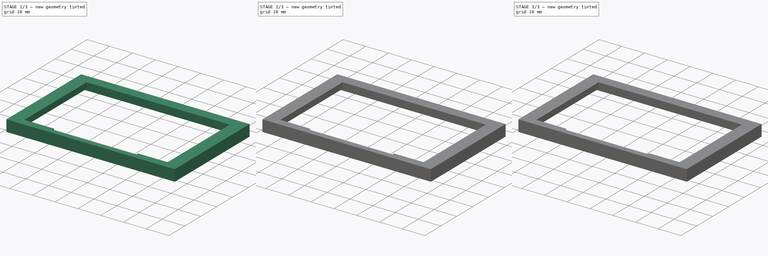
[diagram: build sequence overview — one tinted view per stage of 3, left to right]
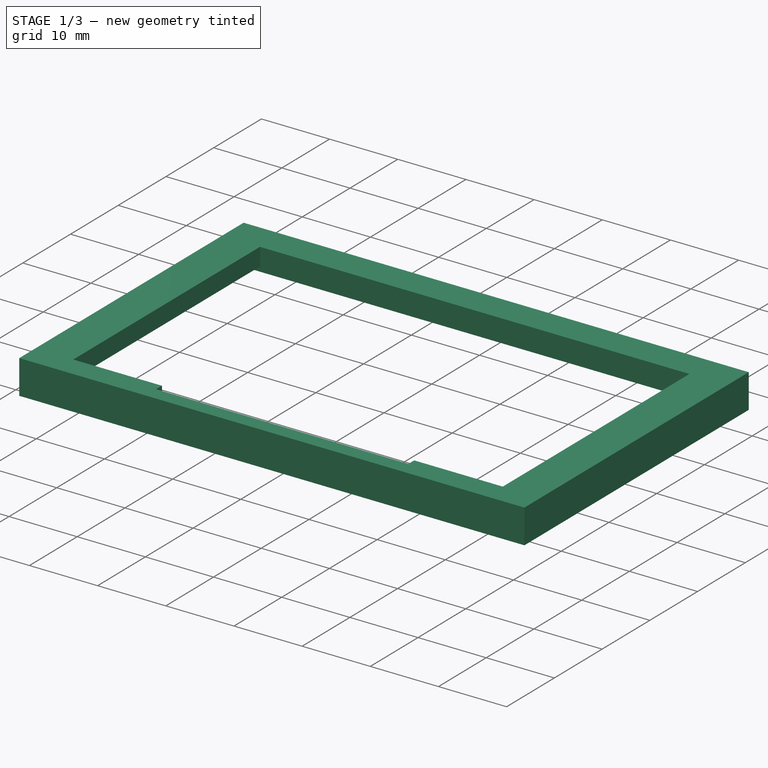
[diagram: stage 1 of 3 — iso view after this stage's code; geometry added in this stage tinted green]
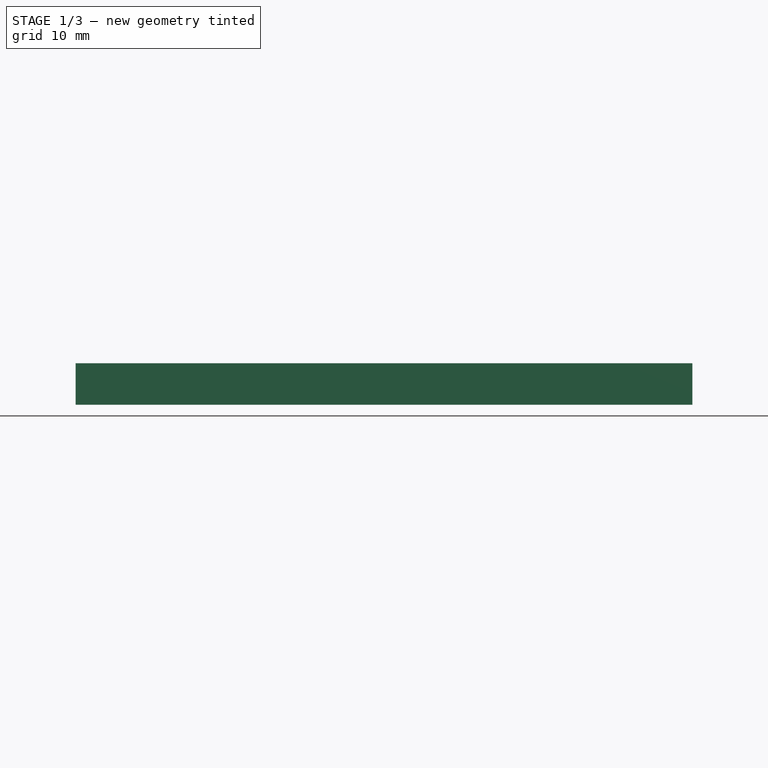
[diagram: stage 1 of 3 — front view after this stage's code; geometry added in this stage tinted green]
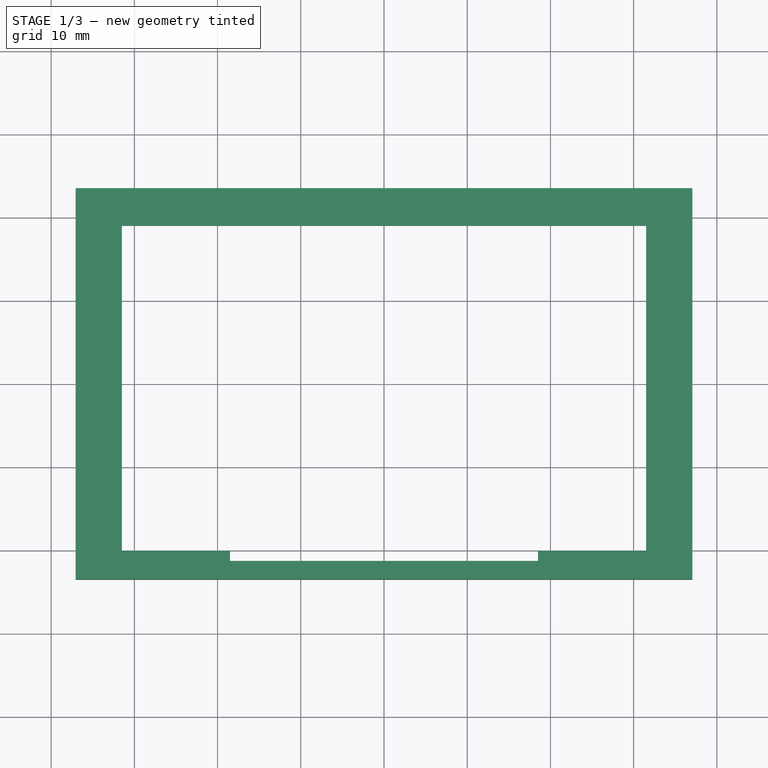
[diagram: stage 1 of 3 — top view after this stage's code; geometry added in this stage tinted green]
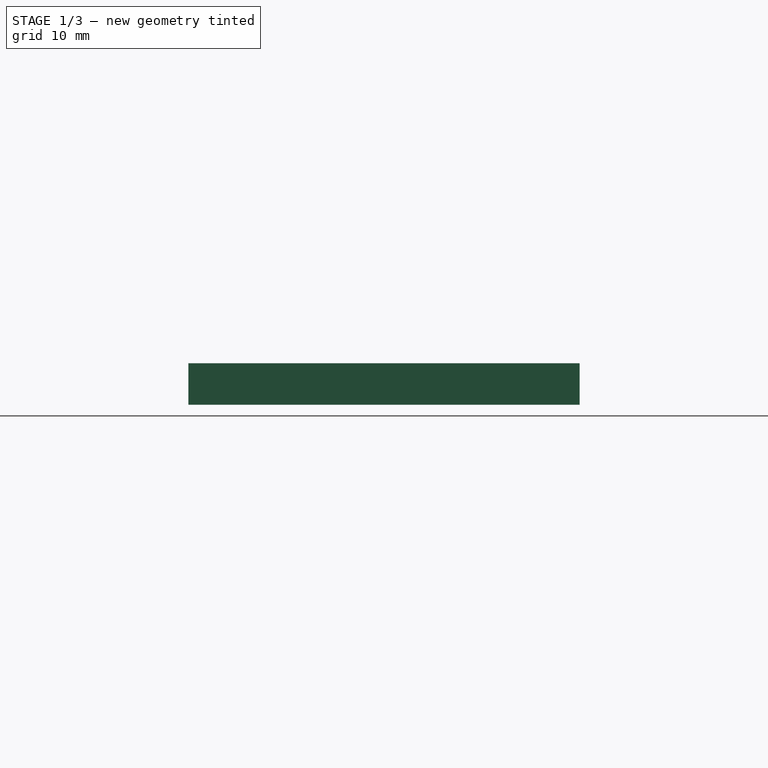
[diagram: stage 1 of 3 — right view after this stage's code; geometry added in this stage tinted green]
FCSTD DOCUMENT  (FreeCAD 0.18.4R)
Label: up_case
License: All rights reserved
LicenseURL: http://en.wikipedia.org/wiki/All_rights_reserved
objects: Sketcher::SketchObject×4, PartDesign::Pocket×3, PartDesign::Chamfer×2, PartDesign::Fillet×2, PartDesign::Pad×1, PartDesign::Body×1
note: 17 computed .brp shape members not serialized (recipe doc carries the construction recipe); baked Part::Feature solids carry a one-line shape summary decoded from their .brp

FEATURE [Sketcher::SketchObject] Sketch
  MapMode = 5
  Support = -> [XY_Plane]
  sketch-geometry (4):
    g0: LineSegment StartX=-37.05 StartY=23.5 StartZ=0 EndX=37.05 EndY=23.5 EndZ=0
    g1: LineSegment StartX=37.05 StartY=23.5 StartZ=0 EndX=37.05 EndY=-23.5 EndZ=0
    g2: LineSegment StartX=37.05 StartY=-23.5 StartZ=0 EndX=-37.05 EndY=-23.5 EndZ=0
    g3: LineSegment StartX=-37.05 StartY=-23.5 StartZ=0 EndX=-37.05 EndY=23.5 EndZ=0
  constraints (10):
    c: Coincident(g0,g1)
    c: Coincident(g1,g2)
    c: Coincident(g2,g3)
    c: Coincident(g3,g0)
    c: Horizontal(g2)
    c: Vertical(g1)
    c: Symmetric(g0,g0,g-2)
    c: Symmetric(g0,g2,g-1)
    c: DistanceX(g0,g0) = 74.1
    c: DistanceY(g3,g3) = 47
FEATURE [PartDesign::Pad] Pad
  Length = 5
  Length2 = 100
  Profile = -> Sketch
  Type = 0
FEATURE [Sketcher::SketchObject] Sketch001
  ExternalGeometry = -> [Pad]
  MapMode = 5
  Placement = pos=(0,0,0) rot=(1,0,0;3.14159rad)
  Support = -> [Pad]
  sketch-geometry (4):
    g0: LineSegment StartX=-35.85 StartY=22 StartZ=0 EndX=35.85 EndY=22 EndZ=0
    g1: LineSegment StartX=35.85 StartY=22 StartZ=0 EndX=35.85 EndY=-22 EndZ=0
    g2: LineSegment StartX=35.85 StartY=-22 StartZ=0 EndX=-35.85 EndY=-22 EndZ=0
    g3: LineSegment StartX=-35.85 StartY=-22 StartZ=0 EndX=-35.85 EndY=22 EndZ=0
  constraints (12):
    c: Coincident(g0,g1)
    c: Coincident(g1,g2)
    c: Coincident(g2,g3)
    c: Coincident(g3,g0)
    c: Horizontal(g2)
    c: Vertical(g1)
    c: Distance(g-4) = 74.1
    c: Distance(g-3) = 47
    c: Symmetric(g0,g0,g-2)
    c: Symmetric(g0,g2,g-1)
    c: DistanceX(g0,g0) = 71.7
    c: DistanceY(g1,g1) = 44
FEATURE [PartDesign::Pocket] Pocket
  BaseFeature = -> Pad
  Length = 2.4
  Length2 = 100
  Profile = -> Sketch001
  Type = 0
FEATURE [Sketcher::SketchObject] Sketch002
  ExternalGeometry = -> [Pocket]
  MapMode = 5
  Placement = pos=(0,0,5) rot=(0,0,1;0rad)
  Support = -> [Pocket]
  sketch-geometry (8):
    g0: LineSegment StartX=-31.5 StartY=19 StartZ=0 EndX=31.5 EndY=19 EndZ=0
    g1: LineSegment StartX=31.5 StartY=19 StartZ=0 EndX=31.5 EndY=-20.1 EndZ=0
    g2: LineSegment StartX=-31.5 StartY=-20.1 StartZ=0 EndX=-31.5 EndY=19 EndZ=0
    g3: LineSegment StartX=18.5 StartY=-20.1 StartZ=0 EndX=18.5 EndY=-21.3 EndZ=0
    g4: LineSegment StartX=18.5 StartY=-21.3 StartZ=0 EndX=-18.5 EndY=-21.3 EndZ=0
    g5: LineSegment StartX=-18.5 StartY=-21.3 StartZ=0 EndX=-18.5 EndY=-20.1 EndZ=0
    g6: LineSegment StartX=-31.5 StartY=-20.1 StartZ=0 EndX=-18.5 EndY=-20.1 EndZ=0
    g7: LineSegment StartX=31.5 StartY=-20.1 StartZ=0 EndX=18.5 EndY=-20.1 EndZ=0
  constraints (20):
    c: Coincident(g0,g1)
    c: Coincident(g2,g0)
    c: Vertical(g1)
    c: Vertical(g2)
    c: Symmetric(g0,g0,g-2)
    c: DistanceX(g0,g0) = 63
    c: DistanceY(g2,g2) = 39.1
    c: Distance(g0,g-4) = 4.5
    c: Coincident(g3,g4)
    c: Coincident(g4,g5)
    c: Horizontal(g4)
    c: Vertical(g3)
    c: Vertical(g5)
    c: Symmetric(g3,g5,g-2)
    c: DistanceX(g4,g4) = 37
    c: DistanceY(g5,g5) = 1.2
    c: Coincident(g6,g2)
    c: Horizontal(g6)
    c: Coincident(g7,g1)
    c: Horizontal(g7)
FEATURE [PartDesign::Pocket] Pocket001
  BaseFeature = -> Pocket
  Length = 5
  Length2 = 100
  Profile = -> Sketch002
  Type = 0
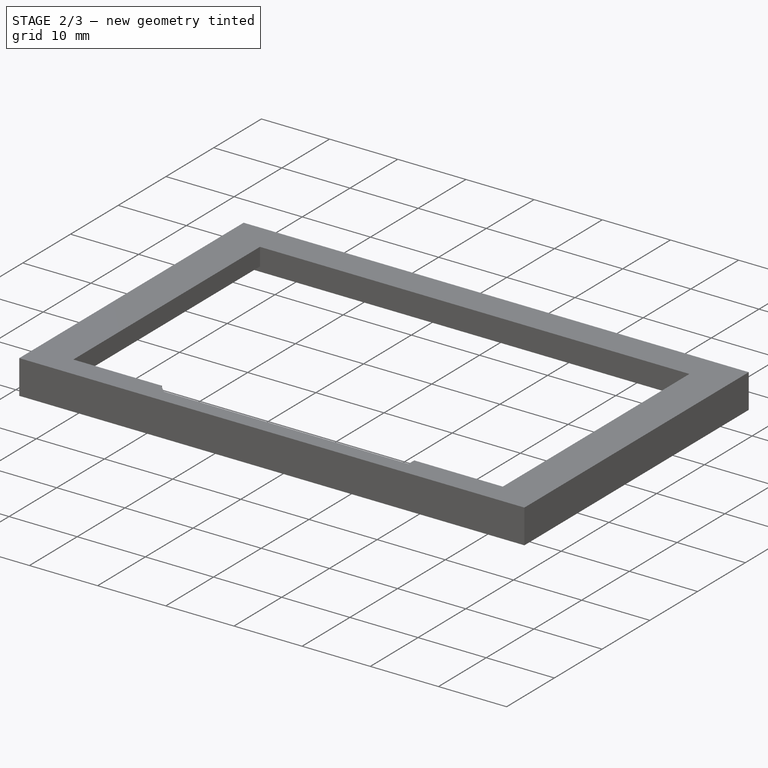
[diagram: stage 2 of 3 — iso view after this stage's code; geometry added in this stage tinted green]
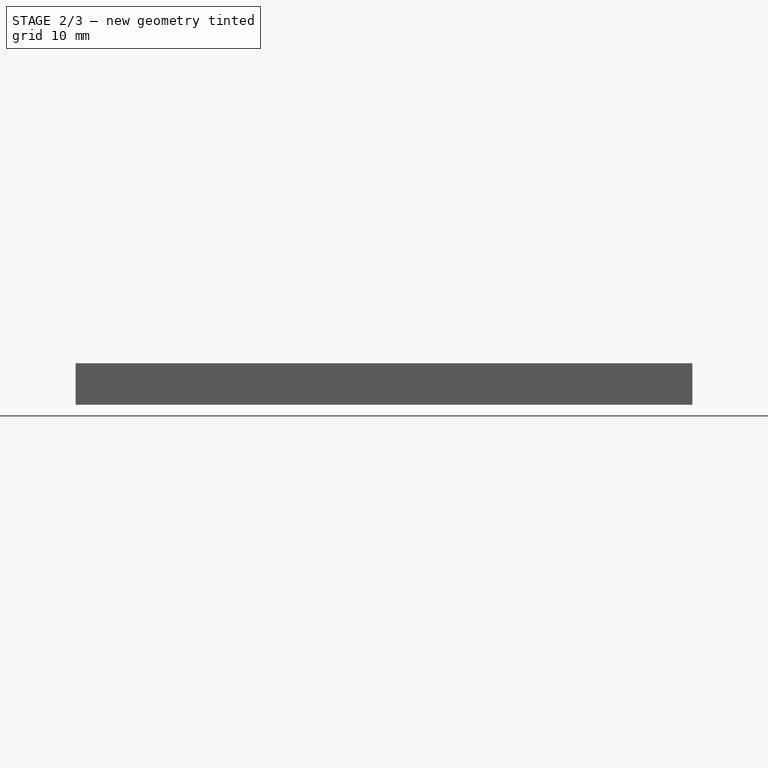
[diagram: stage 2 of 3 — front view after this stage's code; geometry added in this stage tinted green]
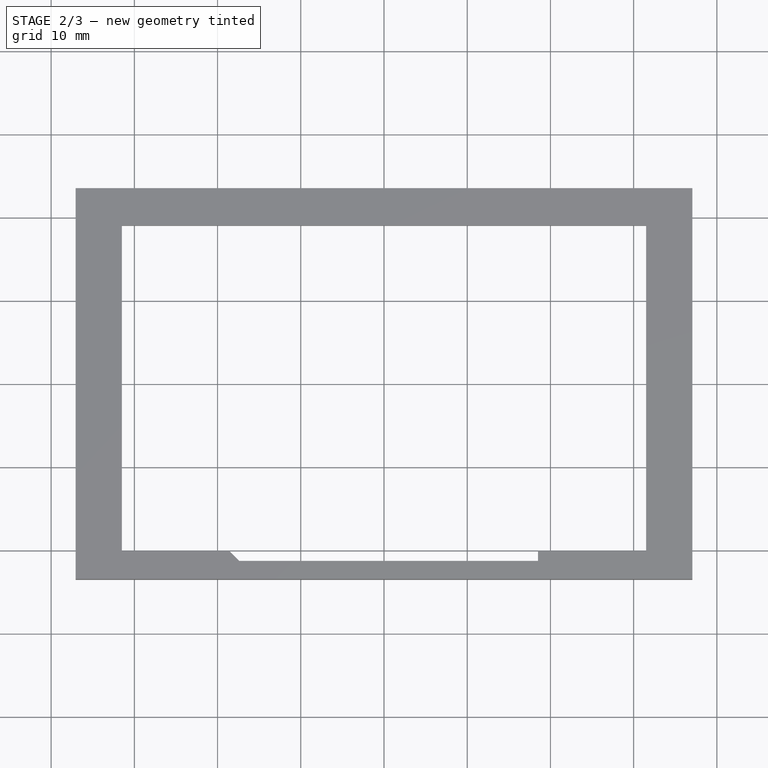
[diagram: stage 2 of 3 — top view after this stage's code; geometry added in this stage tinted green]
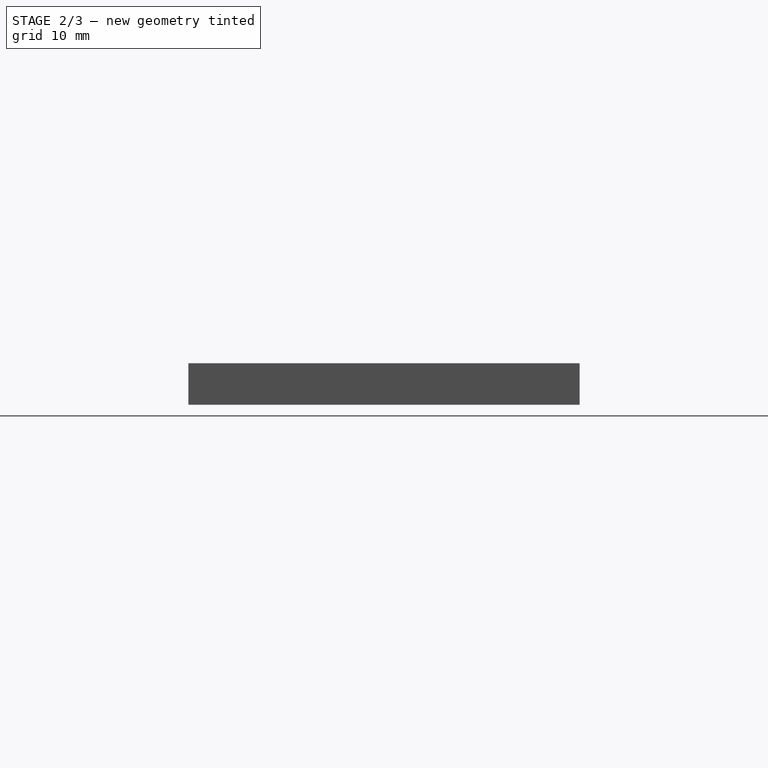
[diagram: stage 2 of 3 — right view after this stage's code; geometry added in this stage tinted green]
FEATURE [Sketcher::SketchObject] Sketch004
  ExternalGeometry = -> [Pocket001]
  MapMode = 5
  Placement = pos=(0,0,2.4) rot=(1,0,0;3.14159rad)
  Support = -> [Pocket001]
  sketch-geometry (4):
    g0: LineSegment StartX=-35.85 StartY=9.5 StartZ=0 EndX=-33.35 EndY=9.5 EndZ=0
    g1: LineSegment StartX=-33.35 StartY=9.5 StartZ=0 EndX=-33.35 EndY=-9.5 EndZ=0
    g2: LineSegment StartX=-33.35 StartY=-9.5 StartZ=0 EndX=-35.85 EndY=-9.5 EndZ=0
    g3: LineSegment StartX=-35.85 StartY=-9.5 StartZ=0 EndX=-35.85 EndY=9.5 EndZ=0
  constraints (11):
    c: Coincident(g0,g1)
    c: Coincident(g1,g2)
    c: Coincident(g2,g3)
    c: Coincident(g3,g0)
    c: Horizontal(g0)
    c: Horizontal(g2)
    c: Vertical(g3)
    c: Symmetric(g0,g1,g-1)
    c: DistanceY(g1,g1) = 19
    c: PointOnObject(g0,g-3)
    c: DistanceX(g0,g0) = 2.5
FEATURE [PartDesign::Pocket] Pocket002
  BaseFeature = -> Pocket001
  Length = 2.4
  Length2 = 100
  Profile = -> Sketch004
  Type = 0
FEATURE [PartDesign::Chamfer] Chamfer
  Base = -> Pocket002 [Edge44]
  BaseFeature = -> Pocket002
  Size = 1.1
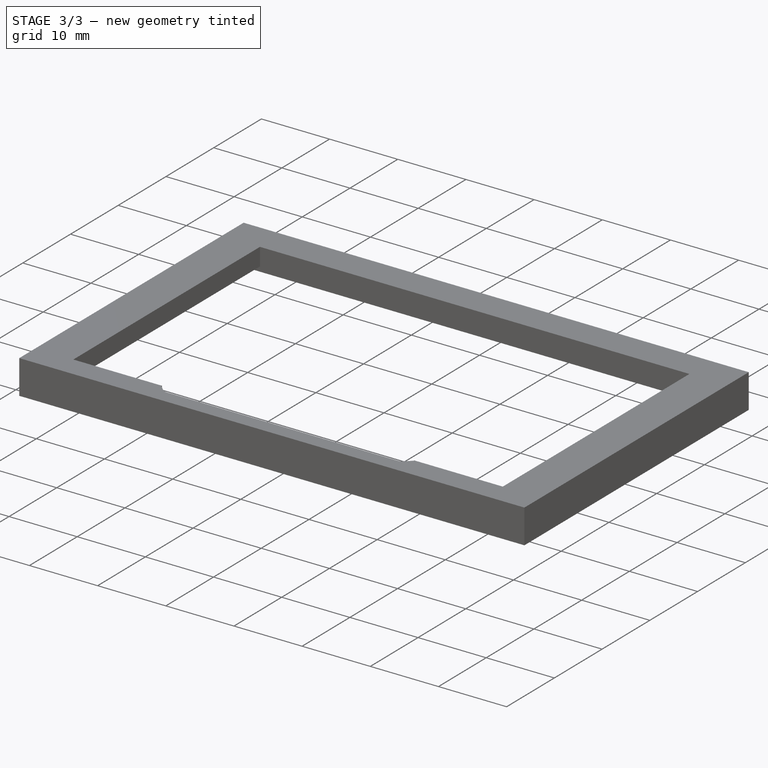
[diagram: stage 3 of 3 — iso view after this stage's code; geometry added in this stage tinted green]
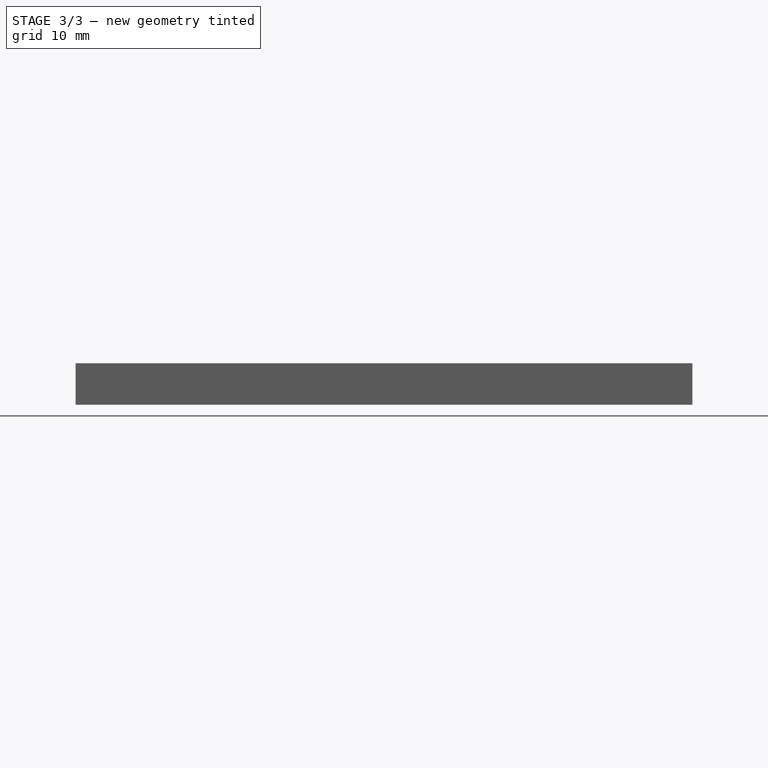
[diagram: stage 3 of 3 — front view after this stage's code; geometry added in this stage tinted green]
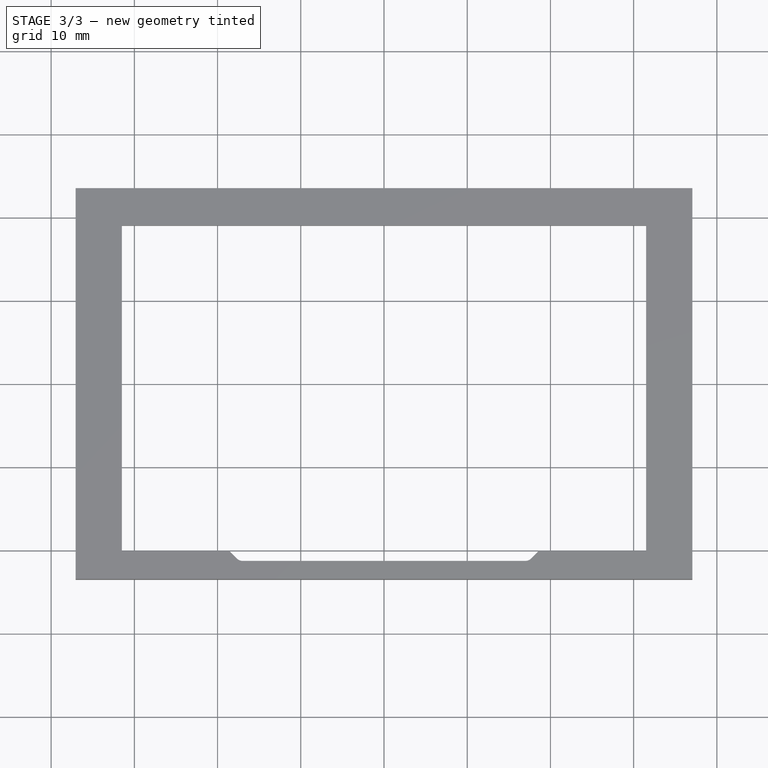
[diagram: stage 3 of 3 — top view after this stage's code; geometry added in this stage tinted green]
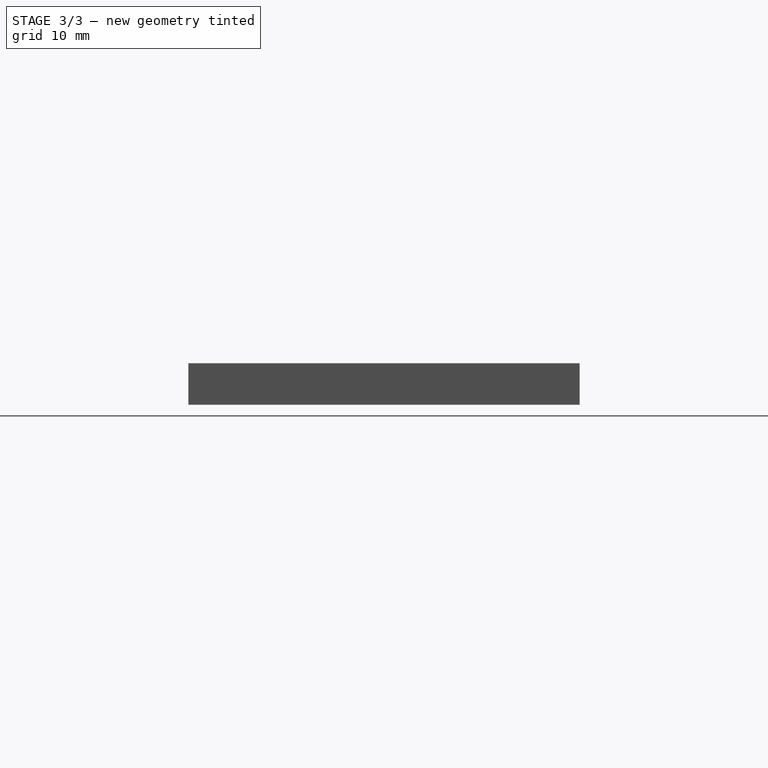
[diagram: stage 3 of 3 — right view after this stage's code; geometry added in this stage tinted green]
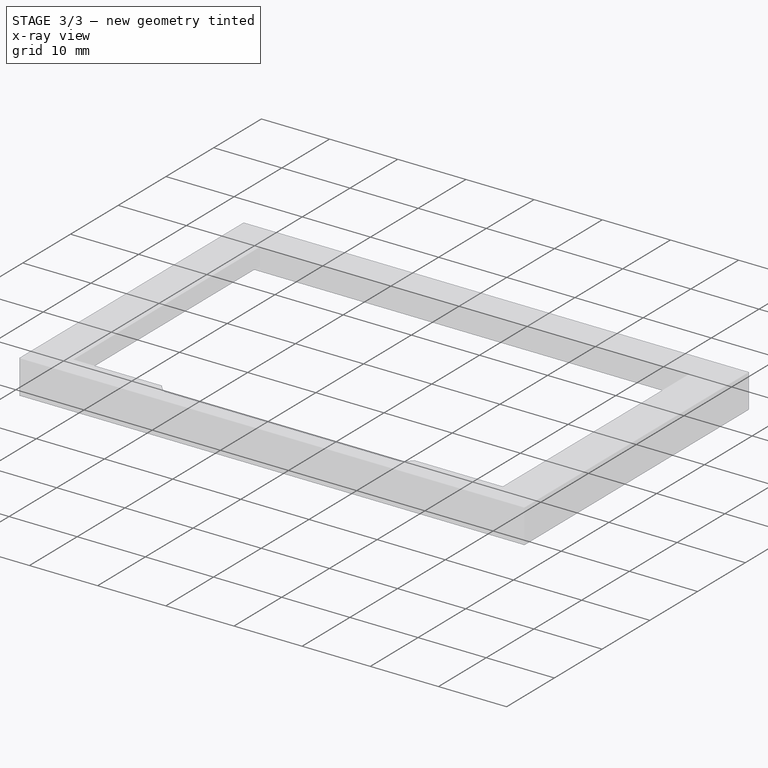
[diagram: stage 3 of 3 — x-ray composite at the iso view; earlier geometry ghosted, this stage's added geometry solid]
FEATURE [PartDesign::Chamfer] Chamfer001
  Base = -> Chamfer [Edge15]
  BaseFeature = -> Chamfer
  Size = 1.1
FEATURE [PartDesign::Fillet] Fillet
  Base = -> Chamfer001 [Edge15]
  BaseFeature = -> Chamfer001
  Radius = 1
FEATURE [PartDesign::Fillet] Fillet001
  Base = -> Fillet [Edge17]
  BaseFeature = -> Fillet
  Radius = 1
FEATURE [PartDesign::Body] Body
  Group = -> [Sketch,Pad,Sketch001,Pocket,Sketch002,Pocket001,Sketch004,Pocket002,Chamfer,Chamfer001,Fillet,Fillet001]
  Origin = -> Origin
  Tip = -> Fillet001
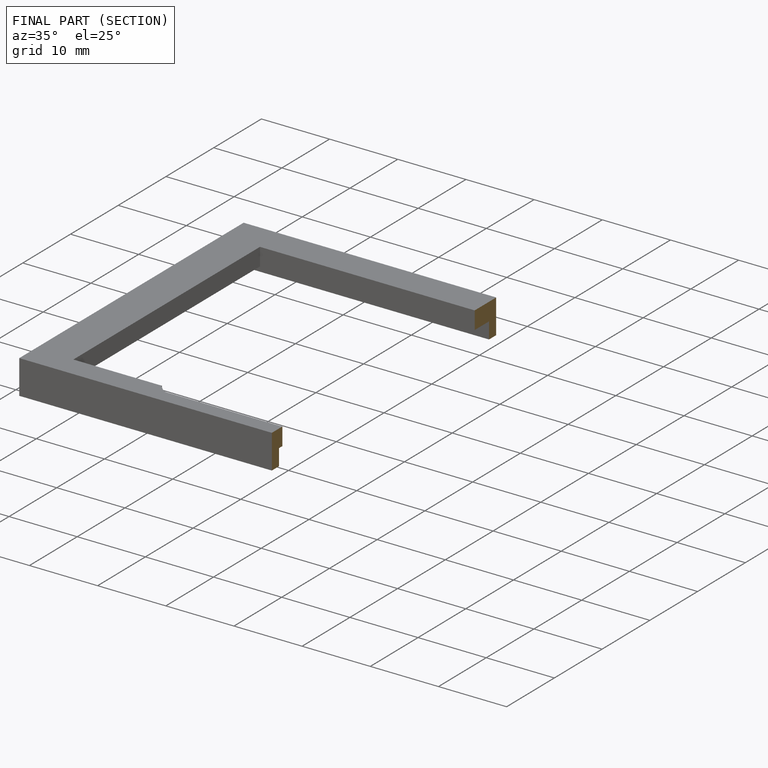
[diagram: finished part — half-section view (interior)]
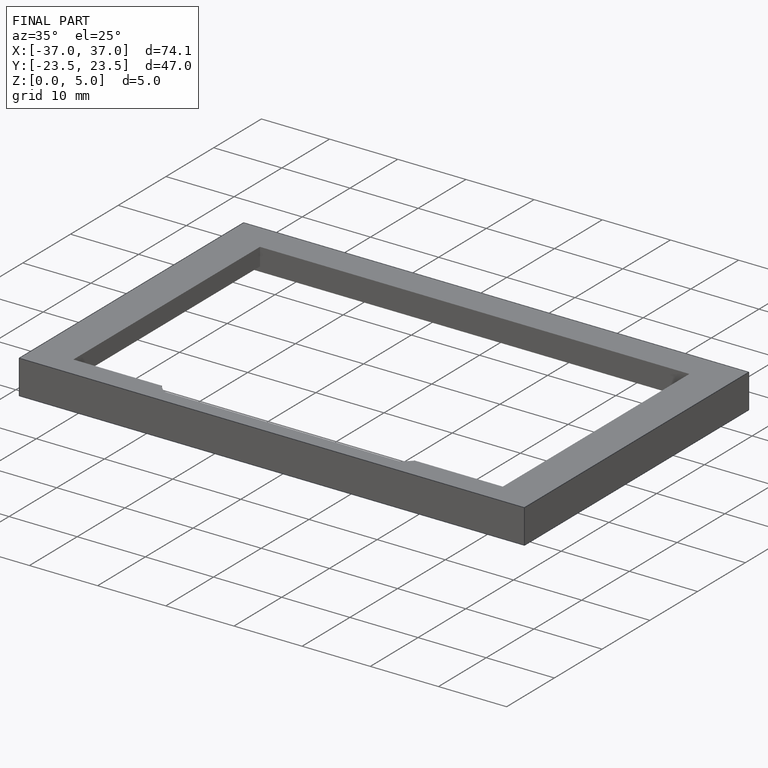
[diagram: finished part — iso view with bounding-box wireframe]
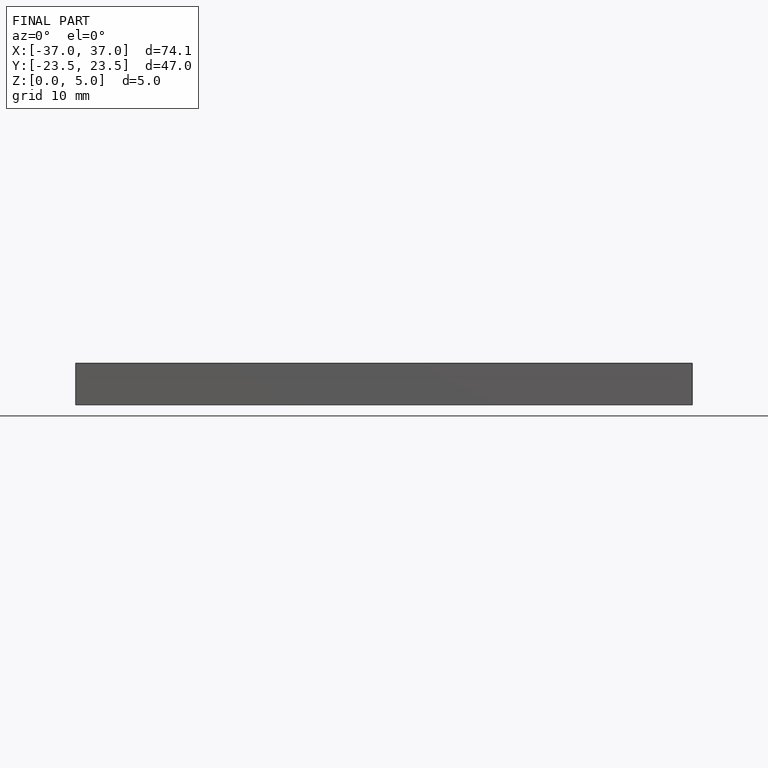
[diagram: finished part — front view with bounding-box wireframe]
